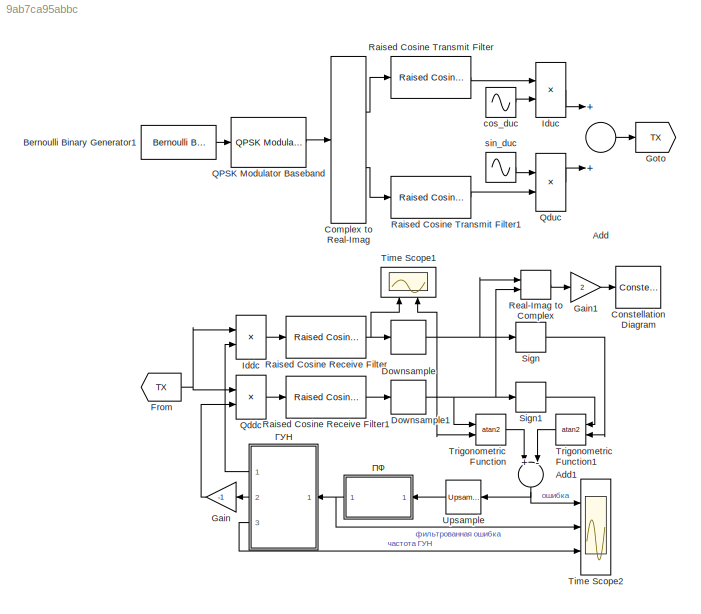
MODEL slx_9ab7ca95abbc
KIND model
CONFIG AbsTol = auto
CONFIG EnableMultiTasking = off
CONFIG FixedStep = auto
CONFIG MaxStep = auto
CONFIG MinStep = auto
CONFIG PreLoadFcn = pr741_QPSK_synch_setup;
CONFIG RelTol = 1e-3
CONFIG SampleTimeConstraint = Unconstrained
CONFIG Solver = VariableStepAuto
CONFIG SolverName = VariableStepAuto
CONFIG StartTime = 0.0
CONFIG StopTime = 50000/fs
BLOCK [Sum] Add
  InputSameDT = off
  OutDataTypeStr = Inherit: Inherit via internal rule
  Ports = [2, 1]
  SaturateOnIntegerOverflow = off
BLOCK [Sum] Add1
  InputSameDT = off
  Inputs = +-
  OutDataTypeStr = Inherit: Inherit via internal rule
  Ports = [2, 1]
  SaturateOnIntegerOverflow = off
BLOCK [Reference] Bernoulli Binary Generator1  REF=commrandsrc3/Bernoulli Binary
Generator
  Ports = [0, 1]
  SourceBlock = commrandsrc3/Bernoulli Binary\nGenerator
  SourceProductBaseCode = CM
  SourceProductName = Communications System Toolbox
  SourceType = Bernoulli Binary Generator
BLOCK [ComplexToRealImag] Complex to Real-Imag
  Ports = [1, 2]
BLOCK [ConstellationDiagram] Constellation Diagram
  Ports = [1]
  ScopeSpecificationString = comm.scopes.ConstellationDiagramBlockCfg('CurrentConfiguration', extmgr.ConfigurationSet(extmgr.Configuration('Core','General UI',true,'FigureColor',[1 1 1]),extmgr.Configuration('Core','Source UI',true),extmgr.Configuration('Sources','WiredSimulink',true),extmgr.Configuration('Sources','SimulinkEvent',false),extmgr.Configuration('Sources','Simulink',false),extmgr.Configuration('Sources','SPTool',...<+2326ch>
BLOCK [DownSample] Downsample
  InputProcessing = Elements as channels (sample based)
  N = interp
  RateOptions = Allow multirate processing
BLOCK [DownSample] Downsample1
  InputProcessing = Elements as channels (sample based)
  N = interp
  RateOptions = Allow multirate processing
BLOCK [From] From
  GotoTag = TX
BLOCK [Gain] Gain
  Gain = -1
  OutDataTypeStr = Inherit: Inherit via internal rule
  ParamDataTypeStr = Inherit: Inherit via internal rule
  SaturateOnIntegerOverflow = off
BLOCK [Gain] Gain1
  Gain = 2
  OutDataTypeStr = Inherit: Inherit via internal rule
  ParamDataTypeStr = Inherit: Inherit via internal rule
  SaturateOnIntegerOverflow = off
BLOCK [Goto] Goto
  GotoTag = TX
BLOCK [Product] Iddc
  InputSameDT = off
  OutDataTypeStr = Inherit: Inherit via internal rule
  Ports = [2, 1]
  RndMeth = Floor
  SaturateOnIntegerOverflow = off
BLOCK [Product] Iduc
  InputSameDT = off
  OutDataTypeStr = Inherit: Inherit via internal rule
  Ports = [2, 1]
  RndMeth = Floor
  SaturateOnIntegerOverflow = off
BLOCK [Reference] QPSK Modulator Baseband  REF=commdigbbndpm3/QPSK
Modulator
Baseband
  Ports = [1, 1]
  SourceBlock = commdigbbndpm3/QPSK\nModulator\nBaseband
  SourceProductBaseCode = CM
  SourceProductName = Communications System Toolbox
  SourceType = QPSK Modulator Baseband
BLOCK [Product] Qddc
  InputSameDT = off
  OutDataTypeStr = Inherit: Inherit via internal rule
  Ports = [2, 1]
  RndMeth = Floor
  SaturateOnIntegerOverflow = off
BLOCK [Product] Qduc
  InputSameDT = off
  OutDataTypeStr = Inherit: Inherit via internal rule
  Ports = [2, 1]
  RndMeth = Floor
  SaturateOnIntegerOverflow = off
BLOCK [Reference] Raised Cosine Receive Filter  REF=commfilt2/Raised Cosine
Receive Filter
  Ports = [1, 1]
  SourceBlock = commfilt2/Raised Cosine\nReceive Filter
  SourceProductBaseCode = CM
  SourceProductName = Communications System Toolbox
  SourceType = Raised Cosine Receive Filter
BLOCK [Reference] Raised Cosine Receive Filter1  REF=commfilt2/Raised Cosine
Receive Filter
  Ports = [1, 1]
  SourceBlock = commfilt2/Raised Cosine\nReceive Filter
  SourceProductBaseCode = CM
  SourceProductName = Communications System Toolbox
  SourceType = Raised Cosine Receive Filter
BLOCK [Reference] Raised Cosine Transmit Filter  REF=commfilt2/Raised Cosine
Transmit Filter
  Ports = [1, 1]
  SourceBlock = commfilt2/Raised Cosine\nTransmit Filter
  SourceProductBaseCode = CM
  SourceProductName = Communications System Toolbox
  SourceType = Raised Cosine Transmit Filter
BLOCK [Reference] Raised Cosine Transmit Filter1  REF=commfilt2/Raised Cosine
Transmit Filter
  Ports = [1, 1]
  SourceBlock = commfilt2/Raised Cosine\nTransmit Filter
  SourceProductBaseCode = CM
  SourceProductName = Communications System Toolbox
  SourceType = Raised Cosine Transmit Filter
BLOCK [RealImagToComplex] Real-Imag to Complex
  Ports = [2, 1]
BLOCK [Signum] Sign
BLOCK [Signum] Sign1
BLOCK [Scope] Time Scope1
  DefaultConfigurationName = spbscopes.TimeScopeBlockCfg
  Floating = off
  NumInputPorts = 2
  Ports = [2]
  ScopeSpecificationString = spbscopes.TimeScopeBlockCfg('CurrentConfiguration', extmgr.ConfigurationSet(extmgr.Configuration('Core','General UI',true,'FigureColor',[1 1 1]),extmgr.Configuration('Core','Source UI',true),extmgr.Configuration('Sources','WiredSimulink',true,'DataLoggingVariableName','ScopeData1'),extmgr.Configuration('Visuals','Time Domain',true,'DisplayPropertyDefaults',struct('MinYLimReal','-0.79426','MaxYLimR...<+1899ch>
  UserDataPersistent = on
BLOCK [Scope] Time Scope2
  DefaultConfigurationName = spbscopes.TimeScopeBlockCfg
  Floating = off
  NumInputPorts = 3
  Ports = [3]
  ScopeSpecificationString = spbscopes.TimeScopeBlockCfg('CurrentConfiguration', extmgr.ConfigurationSet(extmgr.Configuration('Core','General UI',true,'FigureColor',[1 1 1]),extmgr.Configuration('Core','Source UI',true),extmgr.Configuration('Sources','WiredSimulink',true,'DataLoggingVariableName','ScopeData2'),extmgr.Configuration('Visuals','Time Domain',true,'DisplayLayoutDimensions',[3 1],'DisplayPropertyDefaults',struct('Y...<+3309ch>
  UserDataPersistent = on
BLOCK [Trigonometry] Trigonometric Function
  Operator = atan2
  Ports = [2, 1]
BLOCK [Trigonometry] Trigonometric Function1
  Operator = atan2
  Ports = [2, 1]
BLOCK [Reference] Upsample  REF=dspsigops/Upsample
  Ports = [1, 1]
  SourceBlock = dspsigops/Upsample
  SourceProductBaseCode = DS
  SourceProductName = DSP System Toolbox
  SourceType = Upsample
  UserDataPersistent = on
BLOCK [Sin] cos_duc
  Frequency = (fc+fe)*2*pi
  Phase = pi/2
  Ports = [0, 1]
  SampleTime = 1/fs
BLOCK [Sin] sin_duc
  Frequency = (fc+fe)*2*pi
  Ports = [0, 1]
  SampleTime = 1/fs
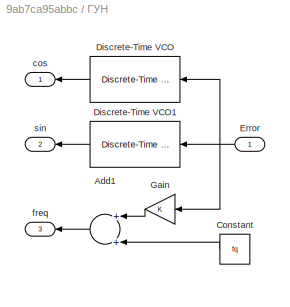
BLOCK [SubSystem] ГУН
  Ports = [1, 3]
  RequestExecContextInheritance = off
BLOCK [Sum] ГУН/Add1
  InputSameDT = off
  OutDataTypeStr = Inherit: Inherit via internal rule
  Ports = [2, 1]
  SaturateOnIntegerOverflow = off
BLOCK [Constant] ГУН/Constant
  Value = fq
BLOCK [Reference] ГУН/Discrete-Time VCO  REF=commsynccomp2/Discrete-Time
VCO
  Ports = [1, 1]
  SourceBlock = commsynccomp2/Discrete-Time\nVCO
  SourceProductBaseCode = CM
  SourceProductName = Communications System Toolbox
  SourceType = Discrete-Time VCO
BLOCK [Reference] ГУН/Discrete-Time VCO1  REF=commsynccomp2/Discrete-Time
VCO
  Ports = [1, 1]
  SourceBlock = commsynccomp2/Discrete-Time\nVCO
  SourceProductBaseCode = CM
  SourceProductName = Communications System Toolbox
  SourceType = Discrete-Time VCO
BLOCK [Inport] ГУН/Error
  IconDisplay = Port number
BLOCK [Gain] ГУН/Gain
  OutDataTypeStr = Inherit: Inherit via internal rule
  ParamDataTypeStr = Inherit: Inherit via internal rule
  SaturateOnIntegerOverflow = off
BLOCK [Outport] ГУН/cos
  IconDisplay = Port number
BLOCK [Outport] ГУН/freq
  IconDisplay = Port number
  Port = 3
BLOCK [Outport] ГУН/sin
  IconDisplay = Port number
  Port = 2
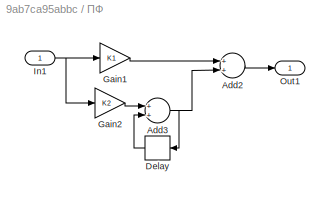
BLOCK [SubSystem] ПФ
  Ports = [1, 1]
  RequestExecContextInheritance = off
BLOCK [Sum] ПФ/Add2
  InputSameDT = off
  OutDataTypeStr = Inherit: Inherit via internal rule
  Ports = [2, 1]
  SaturateOnIntegerOverflow = off
BLOCK [Sum] ПФ/Add3
  InputSameDT = off
  OutDataTypeStr = Inherit: Inherit via internal rule
  Ports = [2, 1]
  SaturateOnIntegerOverflow = off
BLOCK [Delay] ПФ/Delay
  DelayLength = 1
  InitialCondition = 0
  InputPortMap = u0
  Ports = [1, 1]
BLOCK [Gain] ПФ/Gain1
  Gain = K1
  OutDataTypeStr = Inherit: Inherit via internal rule
  ParamDataTypeStr = Inherit: Inherit via internal rule
  SaturateOnIntegerOverflow = off
BLOCK [Gain] ПФ/Gain2
  Gain = K2
  OutDataTypeStr = Inherit: Inherit via internal rule
  ParamDataTypeStr = Inherit: Inherit via internal rule
  SaturateOnIntegerOverflow = off
BLOCK [Inport] ПФ/In1
  IconDisplay = Port number
BLOCK [Outport] ПФ/Out1
  IconDisplay = Port number
NET Add1:1 -> Time Scope2:1, Upsample:1
LINE Add:1 -> Goto:1
LINE Bernoulli Binary Generator1:1 -> QPSK Modulator Baseband:1
LINE Complex to Real-Imag:1 -> Raised Cosine Transmit Filter:1
LINE Complex to Real-Imag:2 -> Raised Cosine Transmit Filter1:1
NET Downsample1:1 -> Real-Imag to Complex:2, Sign1:1, Trigonometric Function:1
NET Downsample:1 -> Real-Imag to Complex:1, Sign:1, Time Scope1:2, Trigonometric Function:2
NET From:1 -> Iddc:1, Qddc:1
LINE Gain1:1 -> Constellation Diagram:1
LINE Gain:1 -> Qddc:2
LINE Iddc:1 -> Raised Cosine Receive Filter:1
LINE Iduc:1 -> Add:1
LINE QPSK Modulator Baseband:1 -> Complex to Real-Imag:1
LINE Qddc:1 -> Raised Cosine Receive Filter1:1
LINE Qduc:1 -> Add:2
LINE Raised Cosine Receive Filter1:1 -> Downsample1:1
NET Raised Cosine Receive Filter:1 -> Downsample:1, Time Scope1:1
LINE Raised Cosine Transmit Filter1:1 -> Qduc:2
LINE Raised Cosine Transmit Filter:1 -> Iduc:1
LINE Real-Imag to Complex:1 -> Gain1:1
LINE Sign1:1 -> Trigonometric Function1:1
LINE Sign:1 -> Trigonometric Function1:2
LINE Trigonometric Function1:1 -> Add1:2
LINE Trigonometric Function:1 -> Add1:1
LINE Upsample:1 -> ПФ:1
LINE cos_duc:1 -> Iduc:2
LINE sin_duc:1 -> Qduc:1
LINE ГУН/Add1:1 -> ГУН/freq:1
LINE ГУН/Constant:1 -> ГУН/Add1:2
LINE ГУН/Discrete-Time VCO1:1 -> ГУН/sin:1
LINE ГУН/Discrete-Time VCO:1 -> ГУН/cos:1
NET ГУН/Error:1 -> ГУН/Discrete-Time VCO1:1, ГУН/Discrete-Time VCO:1, ГУН/Gain:1
LINE ГУН/Gain:1 -> ГУН/Add1:1
LINE ГУН:1 -> Iddc:2
LINE ГУН:2 -> Gain:1
LINE ГУН:3 -> Time Scope2:3
LINE ПФ/Add2:1 -> ПФ/Out1:1
NET ПФ/Add3:1 -> ПФ/Add2:2, ПФ/Delay:1
LINE ПФ/Delay:1 -> ПФ/Add3:2
LINE ПФ/Gain1:1 -> ПФ/Add2:1
LINE ПФ/Gain2:1 -> ПФ/Add3:1
NET ПФ/In1:1 -> ПФ/Gain1:1, ПФ/Gain2:1
NET ПФ:1 -> Time Scope2:2, ГУН:1
note: NET lines group one-source signal fan-out (src -> all destinations, sorted); 1:1 wires keep LINE
